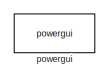
[diagram: root canvas - part 1/3, top left region]
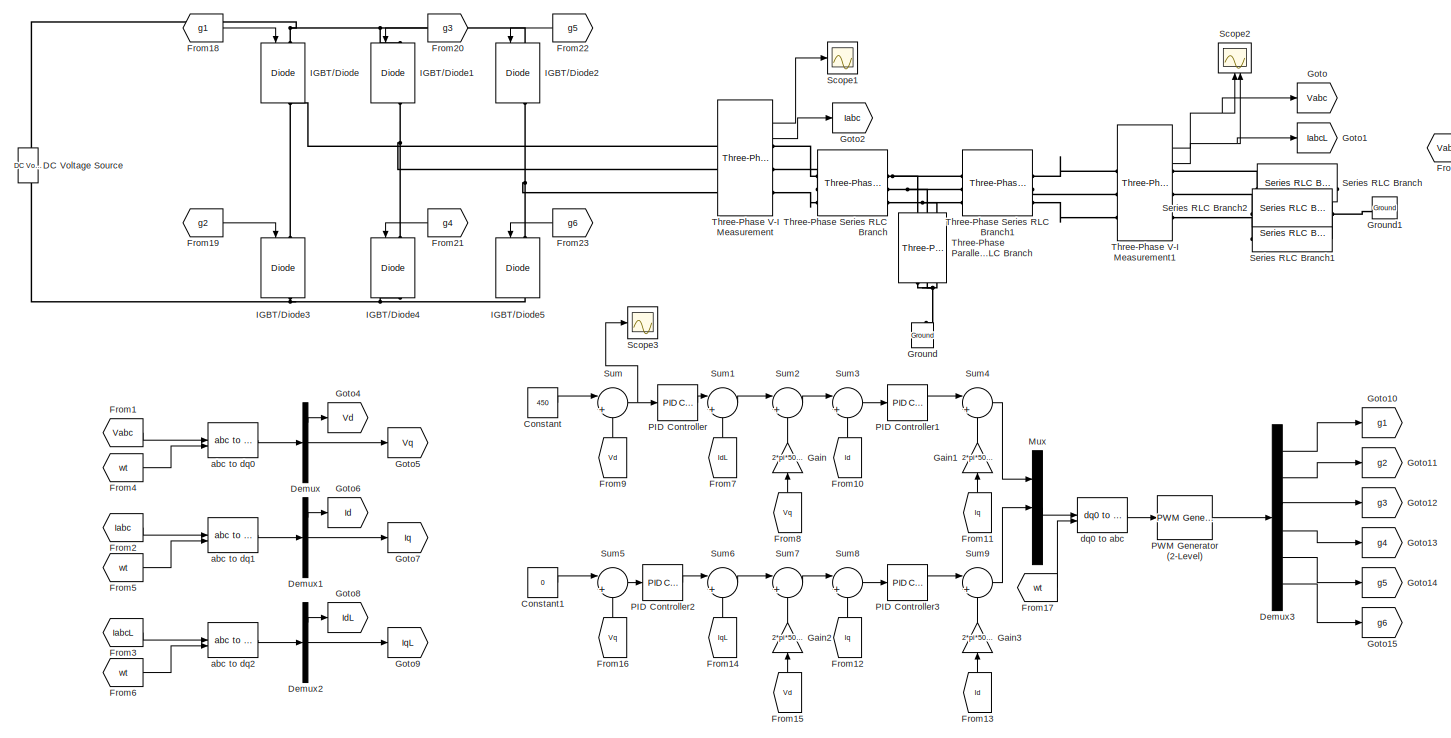
[diagram: root canvas - part 2/3, most of the canvas]
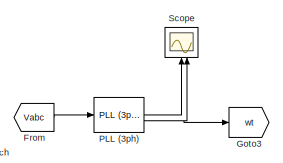
[diagram: root canvas - part 3/3, top right region]
MODEL slx_8323f908a9ea
KIND model
CONFIG AbsTol = auto
CONFIG EnableMultiTasking = off
CONFIG FixedStep = auto
CONFIG MaxStep = auto
CONFIG MinStep = auto
CONFIG RelTol = 1e-3
CONFIG SampleTimeConstraint = Unconstrained
CONFIG SolverName = VariableStepAuto
CONFIG StartTime = 0.0
CONFIG StopTime = 5
BLOCK [Constant] Constant
  Value = 450
BLOCK [Constant] Constant1
  Value = 0
BLOCK [Reference] DC Voltage Source  REF=spsDCVoltageSourceLib/DC Voltage Source
  LibrarySourceBlock = sps_lib/Sources/DC Voltage Source
  SourceBlock = spsDCVoltageSourceLib/DC Voltage Source
  SourceType = DC Voltage Source
BLOCK [Demux] Demux
  Outputs = 3
BLOCK [Demux] Demux1
  Outputs = 3
BLOCK [Demux] Demux2
  Outputs = 3
BLOCK [Demux] Demux3
  Outputs = 6
BLOCK [From] From
  GotoTag = Vabc
BLOCK [From] From1
  GotoTag = Vabc
BLOCK [From] From10
  GotoTag = Id
  NameLocation = right
BLOCK [From] From11
  GotoTag = Iq
  NameLocation = right
BLOCK [From] From12
  GotoTag = Iq
  NameLocation = right
BLOCK [From] From13
  GotoTag = Id
  NameLocation = right
BLOCK [From] From14
  GotoTag = IqL
  NameLocation = right
BLOCK [From] From15
  GotoTag = Vd
  NameLocation = right
BLOCK [From] From16
  GotoTag = Vq
  NameLocation = right
BLOCK [From] From17
  GotoTag = wt
BLOCK [From] From18
  GotoTag = g1
BLOCK [From] From19
  GotoTag = g2
BLOCK [From] From2
  GotoTag = Iabc
BLOCK [From] From20
  GotoTag = g3
  NameLocation = top
BLOCK [From] From21
  GotoTag = g4
  NameLocation = top
BLOCK [From] From22
  GotoTag = g5
  NameLocation = top
BLOCK [From] From23
  GotoTag = g6
  NameLocation = top
BLOCK [From] From3
  GotoTag = IabcL
BLOCK [From] From4
  GotoTag = wt
BLOCK [From] From5
  GotoTag = wt
BLOCK [From] From6
  GotoTag = wt
BLOCK [From] From7
  GotoTag = IdL
  NameLocation = right
BLOCK [From] From8
  GotoTag = Vq
  NameLocation = right
BLOCK [From] From9
  GotoTag = Vd
  NameLocation = right
BLOCK [Gain] Gain
  Gain = 2*pi*50*9.94e-6
  NameLocation = right
BLOCK [Gain] Gain1
  Gain = 2*pi*50*10.2e-3
  NameLocation = right
BLOCK [Gain] Gain2
  Gain = 2*pi*50*9.94e-6
  NameLocation = right
BLOCK [Gain] Gain3
  Gain = 2*pi*50*10.2e-3
  NameLocation = right
BLOCK [Goto] Goto
  GotoTag = Vabc
BLOCK [Goto] Goto1
  GotoTag = IabcL
BLOCK [Goto] Goto10
  GotoTag = g1
BLOCK [Goto] Goto11
  GotoTag = g2
BLOCK [Goto] Goto12
  GotoTag = g3
BLOCK [Goto] Goto13
  GotoTag = g4
BLOCK [Goto] Goto14
  GotoTag = g5
BLOCK [Goto] Goto15
  GotoTag = g6
BLOCK [Goto] Goto2
  GotoTag = Iabc
BLOCK [Goto] Goto3
  GotoTag = wt
BLOCK [Goto] Goto4
  GotoTag = Vd
BLOCK [Goto] Goto5
  GotoTag = Vq
BLOCK [Goto] Goto6
  GotoTag = Id
BLOCK [Goto] Goto7
  GotoTag = Iq
BLOCK [Goto] Goto8
  GotoTag = IdL
BLOCK [Goto] Goto9
  GotoTag = IqL
BLOCK [Reference] Ground  REF=spsGroundLib/Ground
  LibrarySourceBlock = sps_lib/Utilities/Ground
  NameLocation = right
  SourceBlock = spsGroundLib/Ground
  SourceType = Ground
BLOCK [Reference] Ground1  REF=spsGroundLib/Ground
  LibrarySourceBlock = sps_lib/Utilities/Ground
  NameLocation = top
  SourceBlock = spsGroundLib/Ground
  SourceType = Ground
BLOCK [Reference] IGBT//Diode  REF=spsIGBTDiodeLib/IGBT//Diode
  NameLocation = left
  SourceBlock = spsIGBTDiodeLib/IGBT//Diode
  SourceType = IGBT/Diode
BLOCK [Reference] IGBT//Diode1  REF=spsIGBTDiodeLib/IGBT//Diode
  NameLocation = left
  SourceBlock = spsIGBTDiodeLib/IGBT//Diode
  SourceType = IGBT/Diode
BLOCK [Reference] IGBT//Diode2  REF=spsIGBTDiodeLib/IGBT//Diode
  NameLocation = left
  SourceBlock = spsIGBTDiodeLib/IGBT//Diode
  SourceType = IGBT/Diode
BLOCK [Reference] IGBT//Diode3  REF=spsIGBTDiodeLib/IGBT//Diode
  NameLocation = left
  SourceBlock = spsIGBTDiodeLib/IGBT//Diode
  SourceType = IGBT/Diode
BLOCK [Reference] IGBT//Diode4  REF=spsIGBTDiodeLib/IGBT//Diode
  NameLocation = left
  SourceBlock = spsIGBTDiodeLib/IGBT//Diode
  SourceType = IGBT/Diode
BLOCK [Reference] IGBT//Diode5  REF=spsIGBTDiodeLib/IGBT//Diode
  NameLocation = left
  SourceBlock = spsIGBTDiodeLib/IGBT//Diode
  SourceType = IGBT/Diode
BLOCK [Mux] Mux
  DisplayOption = bar
  Inputs = 3
BLOCK [Reference] PID Controller  REF=slpidlib/PID Controller
  LibrarySourceBlock = simulink/Continuous/PID Controller
  SourceBlock = slpidlib/PID Controller
  SourceType = PID 1dof
BLOCK [Reference] PID Controller1  REF=slpidlib/PID Controller
  LibrarySourceBlock = simulink/Continuous/PID Controller
  SourceBlock = slpidlib/PID Controller
  SourceType = PID 1dof
BLOCK [Reference] PID Controller2  REF=slpidlib/PID Controller
  LibrarySourceBlock = simulink/Continuous/PID Controller
  SourceBlock = slpidlib/PID Controller
  SourceType = PID 1dof
BLOCK [Reference] PID Controller3  REF=slpidlib/PID Controller
  LibrarySourceBlock = simulink/Continuous/PID Controller
  SourceBlock = slpidlib/PID Controller
  SourceType = PID 1dof
BLOCK [Reference] PLL (3ph)  REF=spsPLL3phLib/PLL
(3ph)
  LibrarySourceBlock = sps_lib/Control/PLL\n(3ph)
  SourceBlock = spsPLL3phLib/PLL\n(3ph)
  SourceType = PLL (3ph)
BLOCK [Reference] PWM Generator (2-Level)  REF=spsPWMGenerator2LevelLib/PWM Generator
(2-Level)
  LibrarySourceBlock = sps_lib/Power Electronics/Power Electronics Control/PWM Generator\n(2-Level)
  SourceBlock = spsPWMGenerator2LevelLib/PWM Generator\n(2-Level)
  SourceType = PWM Generator (2-Level)
BLOCK [Scope] Scope
  Floating = off
  NameLocation = right
  NumInputPorts = 2
  ScopeSpecificationString = Simulink.scopes.TimeScopeBlockCfg('CurrentConfiguration', extmgr.ConfigurationSet(extmgr.Configuration('Core','General UI',true),extmgr.Configuration('Core','Source UI',true),extmgr.Configuration('Sources','WiredSimulink',true),extmgr.Configuration('Visuals','Time Domain',true,'SerializedDisplays',{struct('MinYLimReal','49.97987','MaxYLimReal','50.18119','YLabelReal','','MinYLimMag','49.97987','Ma...<+2101ch>
BLOCK [Scope] Scope1
  Floating = off
  NumInputPorts = 1
  ScopeSpecificationString = Simulink.scopes.TimeScopeBlockCfg('CurrentConfiguration', extmgr.ConfigurationSet(extmgr.Configuration('Core','General UI',true),extmgr.Configuration('Core','Source UI',true),extmgr.Configuration('Sources','WiredSimulink',true,'DataLoggingVariableName','ScopeData1'),extmgr.Configuration('Visuals','Time Domain',true,'SerializedDisplays',{struct('MinYLimReal','-1000.11183','MaxYLimReal','1000.11755'...<+1584ch>
BLOCK [Scope] Scope2
  Floating = off
  NameLocation = right
  NumInputPorts = 2
  ScopeSpecificationString = Simulink.scopes.TimeScopeBlockCfg('CurrentConfiguration', extmgr.ConfigurationSet(extmgr.Configuration('Core','General UI',true),extmgr.Configuration('Core','Source UI',true),extmgr.Configuration('Sources','WiredSimulink',true,'DataLoggingVariableName','ScopeData2'),extmgr.Configuration('Visuals','Time Domain',true,'SerializedDisplays',{struct('MinYLimReal','-553.0855','MaxYLimReal','514.94548','Y...<+2477ch>
BLOCK [Scope] Scope3
  Floating = off
  NumInputPorts = 1
  ScopeSpecificationString = Simulink.scopes.TimeScopeBlockCfg('CurrentConfiguration', extmgr.ConfigurationSet(extmgr.Configuration('Core','General UI',true),extmgr.Configuration('Core','Source UI',true),extmgr.Configuration('Sources','WiredSimulink',true,'DataLoggingVariableName','ScopeData1'),extmgr.Configuration('Visuals','Time Domain',true,'SerializedDisplays',{struct('MinYLimReal','-51.83835','MaxYLimReal','375.77376','Y...<+1480ch>
BLOCK [Reference] Series RLC Branch  REF=spsSeriesRLCBranchLib/Series RLC Branch
  LibrarySourceBlock = sps_lib/Passives/Series RLC Branch
  SourceBlock = spsSeriesRLCBranchLib/Series RLC Branch
  SourceType = Series RLC Branch
BLOCK [Reference] Series RLC Branch1  REF=spsSeriesRLCBranchLib/Series RLC Branch
  LibrarySourceBlock = sps_lib/Passives/Series RLC Branch
  SourceBlock = spsSeriesRLCBranchLib/Series RLC Branch
  SourceType = Series RLC Branch
BLOCK [Reference] Series RLC Branch2  REF=spsSeriesRLCBranchLib/Series RLC Branch
  LibrarySourceBlock = sps_lib/Passives/Series RLC Branch
  SourceBlock = spsSeriesRLCBranchLib/Series RLC Branch
  SourceType = Series RLC Branch
BLOCK [Sum] Sum
  Inputs = |+-
BLOCK [Sum] Sum1
  Inputs = |+-
BLOCK [Sum] Sum2
  Inputs = |+-
BLOCK [Sum] Sum3
  Inputs = |+-
BLOCK [Sum] Sum4
  Inputs = |+-
BLOCK [Sum] Sum5
  Inputs = |+-
BLOCK [Sum] Sum6
  Inputs = |++
BLOCK [Sum] Sum7
  Inputs = |++
BLOCK [Sum] Sum8
  Inputs = |+-
BLOCK [Sum] Sum9
  Inputs = |++
BLOCK [Reference] Three-Phase Parallel RLC Branch  REF=spsThreePhaseParallelRLCBranchLib/Three-Phase
Parallel RLC Branch
  AttributesFormatString = \n
  LibrarySourceBlock = sps_lib/Passives/Three-Phase\nParallel RLC Branch
  NameLocation = left
  SourceBlock = spsThreePhaseParallelRLCBranchLib/Three-Phase\nParallel RLC Branch
  SourceType = Three-Phase Parallel RLC Branch
BLOCK [Reference] Three-Phase Series RLC Branch  REF=spsThreePhaseSeriesRLCBranchLib/Three-Phase
Series RLC Branch
  AttributesFormatString = \n
  LibrarySourceBlock = sps_lib/Passives/Three-Phase\nSeries RLC Branch
  SourceBlock = spsThreePhaseSeriesRLCBranchLib/Three-Phase\nSeries RLC Branch
  SourceType = Three-Phase Series RLC Branch
BLOCK [Reference] Three-Phase Series RLC Branch1  REF=spsThreePhaseSeriesRLCBranchLib/Three-Phase
Series RLC Branch
  AttributesFormatString = \n
  LibrarySourceBlock = sps_lib/Passives/Three-Phase\nSeries RLC Branch
  SourceBlock = spsThreePhaseSeriesRLCBranchLib/Three-Phase\nSeries RLC Branch
  SourceType = Three-Phase Series RLC Branch
BLOCK [Reference] Three-Phase V-I Measurement  REF=spsThreePhaseVIMeasurementLib/Three-Phase
V-I Measurement
  LibrarySourceBlock = sps_lib/Sensors and Measurements/Three-Phase\nV-I Measurement
  SourceBlock = spsThreePhaseVIMeasurementLib/Three-Phase\nV-I Measurement
  SourceType = Three-Phase VI Measurement
BLOCK [Reference] Three-Phase V-I Measurement1  REF=spsThreePhaseVIMeasurementLib/Three-Phase
V-I Measurement
  LibrarySourceBlock = sps_lib/Sensors and Measurements/Three-Phase\nV-I Measurement
  SourceBlock = spsThreePhaseVIMeasurementLib/Three-Phase\nV-I Measurement
  SourceType = Three-Phase VI Measurement
BLOCK [Reference] abc to dq0  REF=spsabctodq0Lib/abc to dq0
  LibrarySourceBlock = sps_lib/Control/abc to dq0
  SourceBlock = spsabctodq0Lib/abc to dq0
  SourceType = abc to dq0 Transformation
BLOCK [Reference] abc to dq1  REF=spsabctodq0Lib/abc to dq0
  LibrarySourceBlock = sps_lib/Control/abc to dq0
  SourceBlock = spsabctodq0Lib/abc to dq0
  SourceType = abc to dq0 Transformation
BLOCK [Reference] abc to dq2  REF=spsabctodq0Lib/abc to dq0
  LibrarySourceBlock = sps_lib/Control/abc to dq0
  SourceBlock = spsabctodq0Lib/abc to dq0
  SourceType = abc to dq0 Transformation
BLOCK [Reference] dq0 to abc  REF=spsdq0toabcLib/dq0 to abc
  LibrarySourceBlock = sps_lib/Control/dq0 to abc
  SourceBlock = spsdq0toabcLib/dq0 to abc
  SourceType = dq0 to abc Transformation
BLOCK [Reference] powergui  REF=spspowerguiLib/powergui
  LibrarySourceBlock = sps_lib/powergui
  Priority = 1
  SourceBlock = spspowerguiLib/powergui
  SourceType = PSB option menu block
LINE Constant1:1 -> Sum5:1
LINE Constant:1 -> Sum:1
LINE Demux1:1 -> Goto6:1
LINE Demux1:2 -> Goto7:1
LINE Demux2:1 -> Goto8:1
LINE Demux2:2 -> Goto9:1
LINE Demux3:1 -> Goto10:1
LINE Demux3:2 -> Goto11:1
LINE Demux3:3 -> Goto12:1
LINE Demux3:4 -> Goto13:1
LINE Demux3:5 -> Goto14:1
LINE Demux3:6 -> Goto15:1
LINE Demux:1 -> Goto4:1
LINE Demux:2 -> Goto5:1
LINE From10:1 -> Sum3:2
LINE From11:1 -> Gain1:1
LINE From12:1 -> Sum8:2
LINE From13:1 -> Gain3:1
LINE From14:1 -> Sum6:2
LINE From15:1 -> Gain2:1
LINE From16:1 -> Sum5:2
LINE From17:1 -> dq0 to abc:2
LINE From18:1 -> IGBT//Diode:1
LINE From19:1 -> IGBT//Diode3:1
LINE From1:1 -> abc to dq0:1
LINE From20:1 -> IGBT//Diode1:1
LINE From21:1 -> IGBT//Diode4:1
LINE From22:1 -> IGBT//Diode2:1
LINE From23:1 -> IGBT//Diode5:1
LINE From2:1 -> abc to dq1:1
LINE From3:1 -> abc to dq2:1
LINE From4:1 -> abc to dq0:2
LINE From5:1 -> abc to dq1:2
LINE From6:1 -> abc to dq2:2
LINE From7:1 -> Sum1:2
LINE From8:1 -> Gain:1
LINE From9:1 -> Sum:2
LINE From:1 -> PLL (3ph):1
LINE Gain1:1 -> Sum4:2
LINE Gain2:1 -> Sum7:2
LINE Gain3:1 -> Sum9:2
LINE Gain:1 -> Sum2:2
LINE Mux:1 -> dq0 to abc:1
LINE PID Controller1:1 -> Sum4:1
LINE PID Controller2:1 -> Sum6:1
LINE PID Controller3:1 -> Sum9:1
LINE PID Controller:1 -> Sum1:1
LINE PLL (3ph):1 -> Scope:1
NET PLL (3ph):2 -> Goto3:1, Scope:2
LINE PWM Generator (2-Level):1 -> Demux3:1
LINE Sum1:1 -> Sum2:1
LINE Sum2:1 -> Sum3:1
LINE Sum3:1 -> PID Controller1:1
LINE Sum4:1 -> Mux:1
LINE Sum5:1 -> PID Controller2:1
LINE Sum6:1 -> Sum7:1
LINE Sum7:1 -> Sum8:1
LINE Sum8:1 -> PID Controller3:1
LINE Sum9:1 -> Mux:2
NET Sum:1 -> PID Controller:1, Scope3:1
NET Three-Phase V-I Measurement1:1 -> Goto:1, Scope2:1
NET Three-Phase V-I Measurement1:2 -> Goto1:1, Scope2:2
LINE Three-Phase V-I Measurement:1 -> Scope1:1
LINE Three-Phase V-I Measurement:2 -> Goto2:1
LINE abc to dq0:1 -> Demux:1
LINE abc to dq1:1 -> Demux1:1
LINE abc to dq2:1 -> Demux2:1
LINE dq0 to abc:1 -> PWM Generator (2-Level):1
PNET net1: DC Voltage Source:LConn1 -- IGBT//Diode3:RConn1 -- IGBT//Diode4:RConn1 -- IGBT//Diode5:RConn1
PNET net2: DC Voltage Source:RConn1 -- IGBT//Diode1:LConn1 -- IGBT//Diode2:LConn1 -- IGBT//Diode:LConn1
PNET net3: Ground1:LConn1 -- Series RLC Branch1:RConn1 -- Series RLC Branch2:RConn1 -- Series RLC Branch:RConn1
PNET net4: Ground:LConn1 -- Three-Phase Parallel RLC Branch:RConn1 -- Three-Phase Parallel RLC Branch:RConn2 -- Three-Phase Parallel RLC Branch:RConn3
PNET net5: IGBT//Diode1:RConn1 -- IGBT//Diode4:LConn1 -- Three-Phase V-I Measurement:LConn2
PNET net6: IGBT//Diode2:RConn1 -- IGBT//Diode5:LConn1 -- Three-Phase V-I Measurement:LConn3
PNET net7: IGBT//Diode3:LConn1 -- IGBT//Diode:RConn1 -- Three-Phase V-I Measurement:LConn1
PLINE Series RLC Branch1:LConn1 -- Three-Phase V-I Measurement1:RConn3
PLINE Series RLC Branch2:LConn1 -- Three-Phase V-I Measurement1:RConn2
PLINE Series RLC Branch:LConn1 -- Three-Phase V-I Measurement1:RConn1
PNET net8: Three-Phase Parallel RLC Branch:LConn1 -- Three-Phase Series RLC Branch1:LConn1 -- Three-Phase Series RLC Branch:RConn1
PNET net9: Three-Phase Parallel RLC Branch:LConn2 -- Three-Phase Series RLC Branch1:LConn2 -- Three-Phase Series RLC Branch:RConn2
PNET net10: Three-Phase Parallel RLC Branch:LConn3 -- Three-Phase Series RLC Branch1:LConn3 -- Three-Phase Series RLC Branch:RConn3
PLINE Three-Phase Series RLC Branch1:RConn1 -- Three-Phase V-I Measurement1:LConn1
PLINE Three-Phase Series RLC Branch1:RConn2 -- Three-Phase V-I Measurement1:LConn2
PLINE Three-Phase Series RLC Branch1:RConn3 -- Three-Phase V-I Measurement1:LConn3
PLINE Three-Phase Series RLC Branch:LConn1 -- Three-Phase V-I Measurement:RConn1
PLINE Three-Phase Series RLC Branch:LConn2 -- Three-Phase V-I Measurement:RConn2
PLINE Three-Phase Series RLC Branch:LConn3 -- Three-Phase V-I Measurement:RConn3
note: NET lines group one-source signal fan-out (src -> all destinations, sorted); 1:1 wires keep LINE; PNET lines group multi-terminal physical nets as a canonical sorted terminal list (undirected conserving connections); 2-terminal nets keep the pairwise PLINE form
